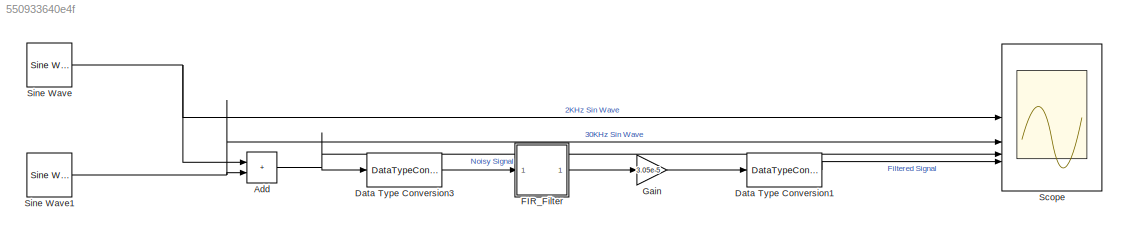
MODEL slx_550933640e4f
KIND model
CONFIG AbsTol = auto
CONFIG EnableMultiTasking = off
CONFIG FixedStep = auto
CONFIG MaxStep = auto
CONFIG MinStep = auto
CONFIG PreLoadFcn = addpath('D:\Digital IC\FPGA\fir_filter\verif\hdlimport\FIR_Filter');\n
CONFIG RelTol = 1e-3
CONFIG SampleTimeConstraint = Unconstrained
CONFIG SolverName = FixedStepDiscrete
CONFIG StartTime = 0.0
CONFIG StopTime = 0.01
BLOCK [Sum] Add
  IconShape = rectangular
  OutDataTypeStr = double
BLOCK [DataTypeConversion] Data Type Conversion1
  OutDataTypeStr = double
  RndMeth = Round
  SaturateOnIntegerOverflow = off
BLOCK [DataTypeConversion] Data Type Conversion3
  OutDataTypeStr = int16
  RndMeth = Round
  SaturateOnIntegerOverflow = off
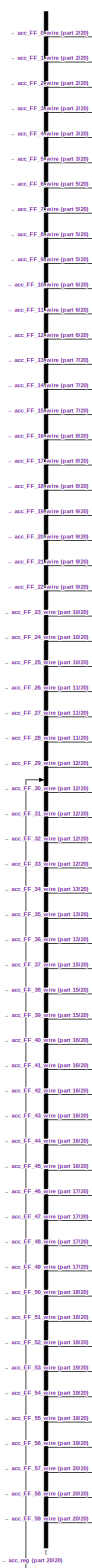
[diagram: FIR_Filter - part 1/20, top left region]
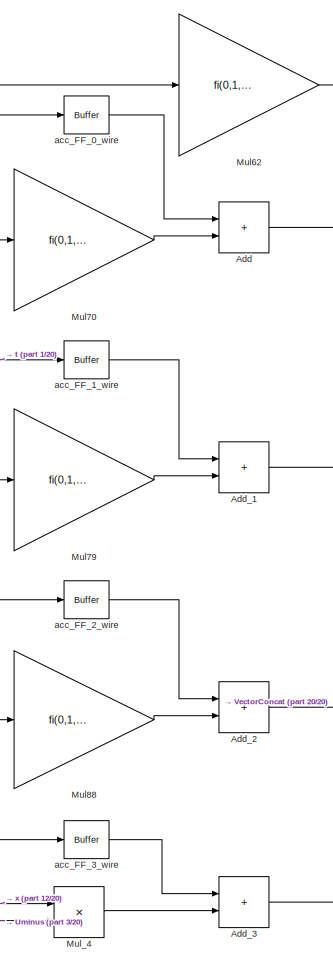
[diagram: FIR_Filter - part 2/20, top center region]
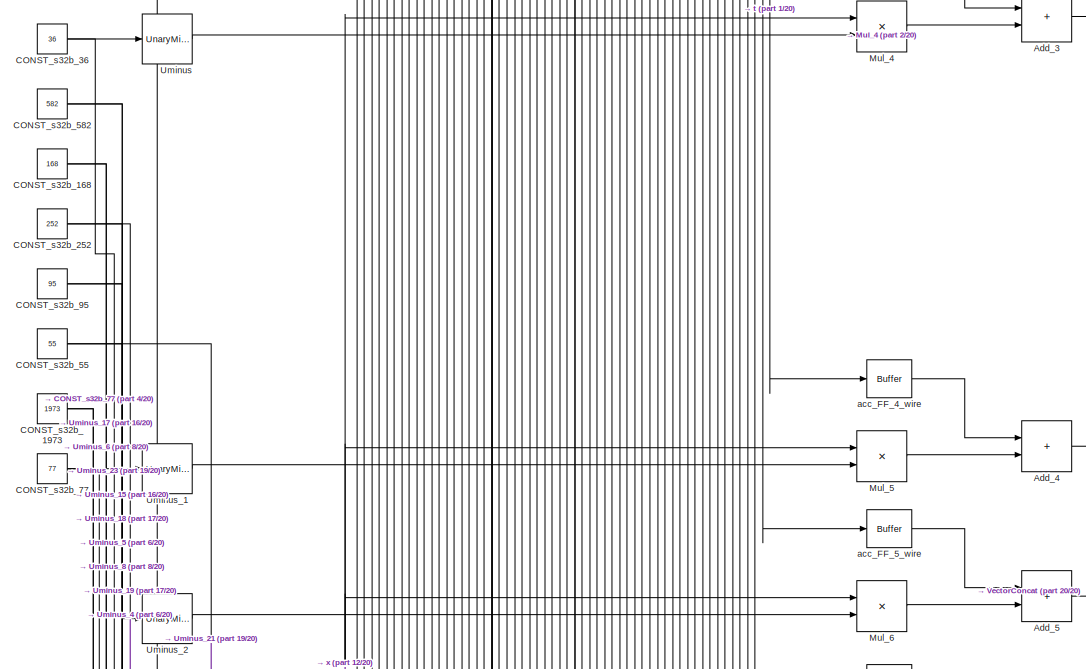
[diagram: FIR_Filter - part 3/20, top left region]
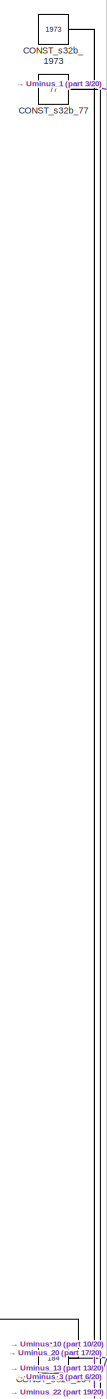
[diagram: FIR_Filter - part 4/20, top left region]
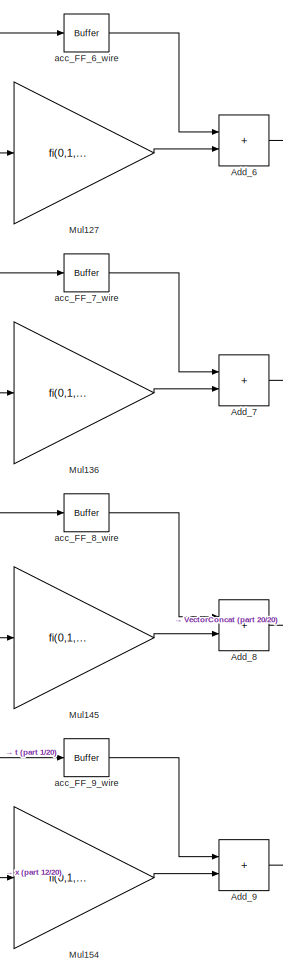
[diagram: FIR_Filter - part 5/20, top center region]
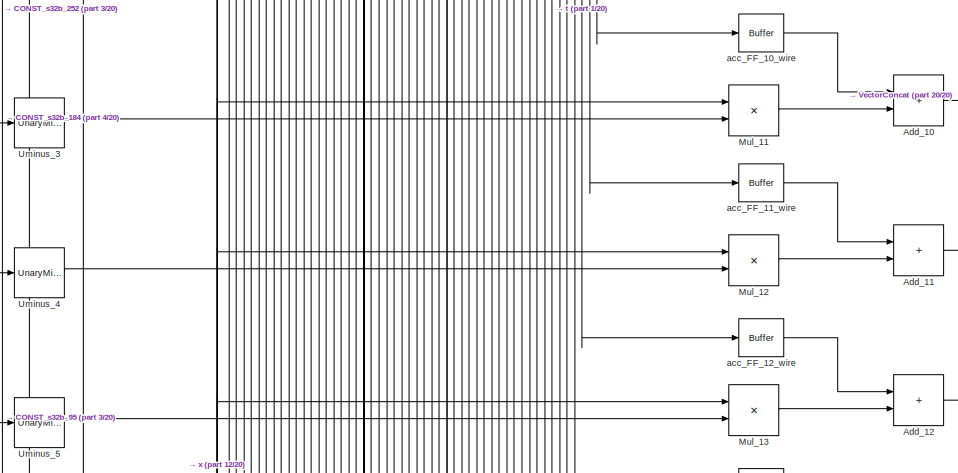
[diagram: FIR_Filter - part 6/20, top left region]
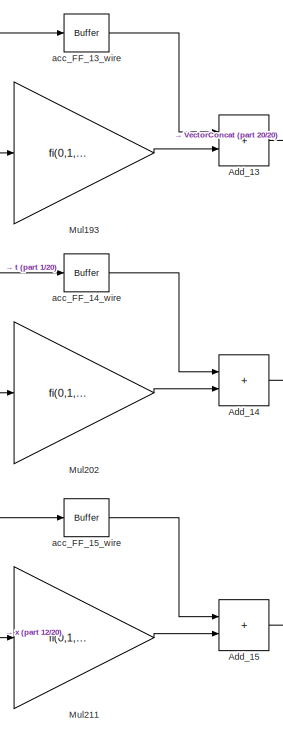
[diagram: FIR_Filter - part 7/20, top center region]
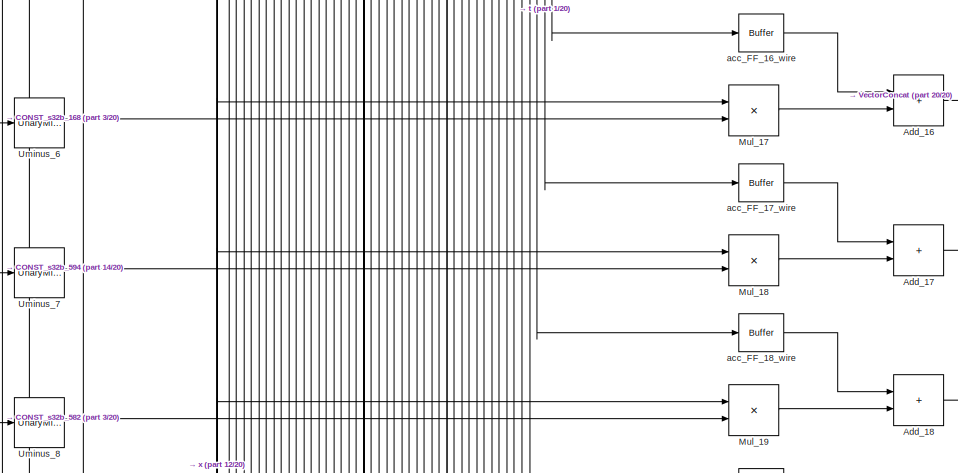
[diagram: FIR_Filter - part 8/20, middle left region]
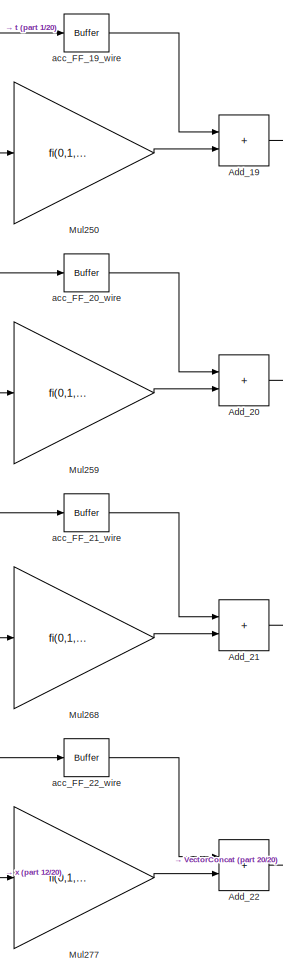
[diagram: FIR_Filter - part 9/20, central region]
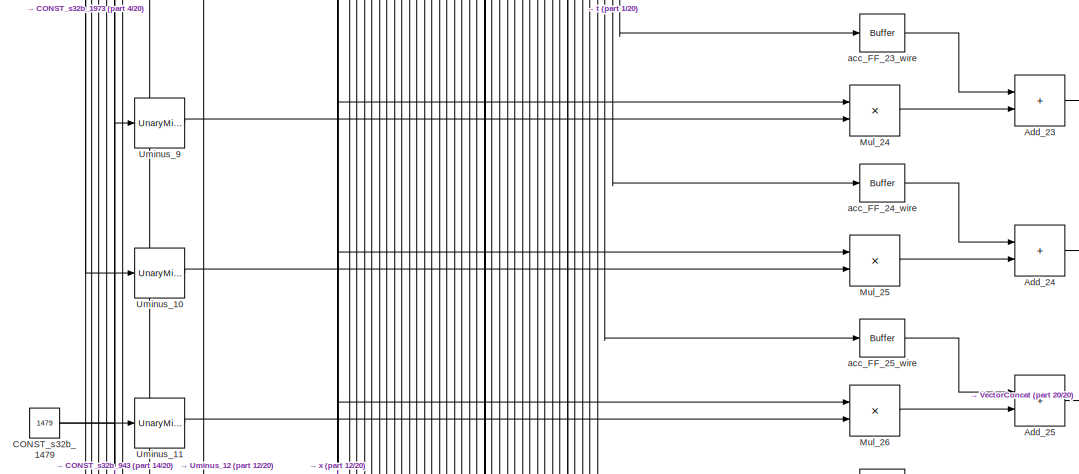
[diagram: FIR_Filter - part 10/20, middle left region]
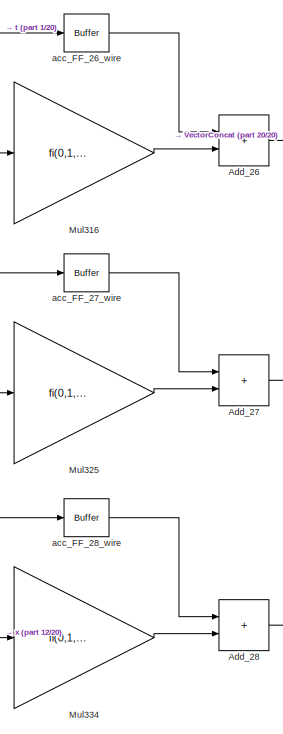
[diagram: FIR_Filter - part 11/20, central region]
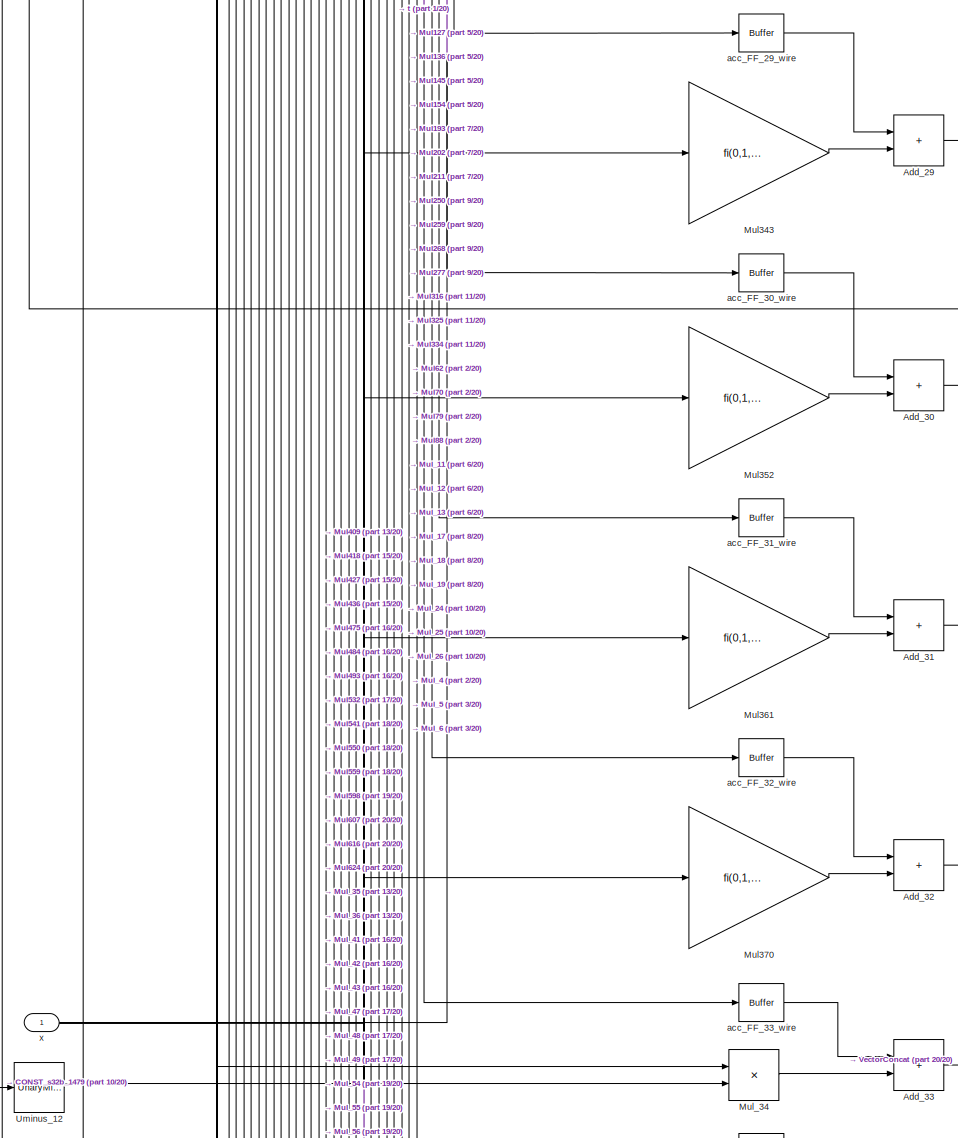
[diagram: FIR_Filter - part 12/20, middle left region]
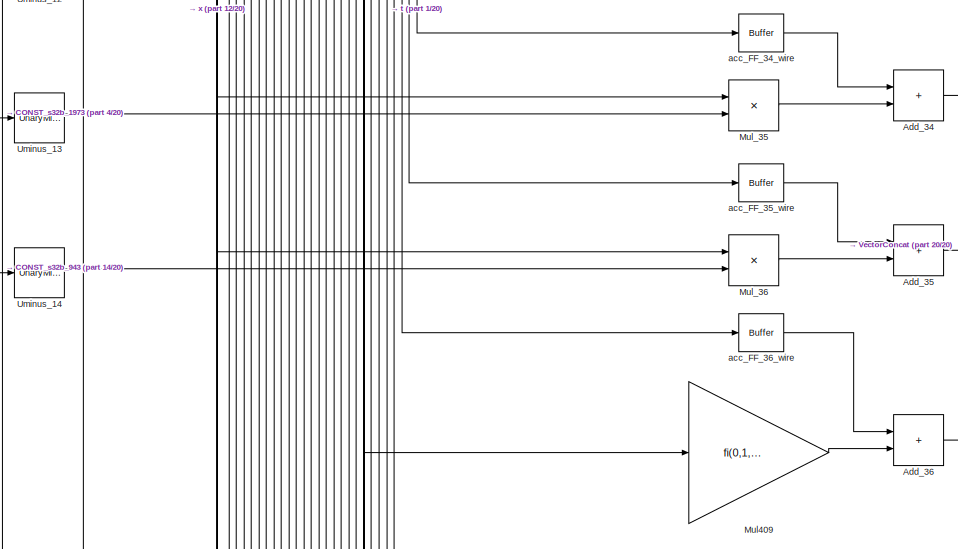
[diagram: FIR_Filter - part 13/20, middle left region]
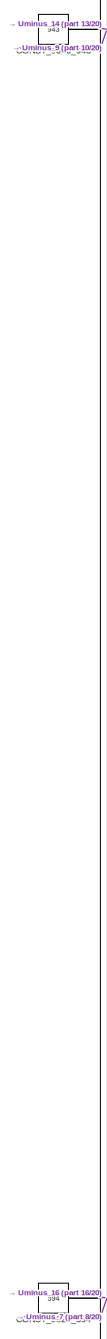
[diagram: FIR_Filter - part 14/20, bottom left region]
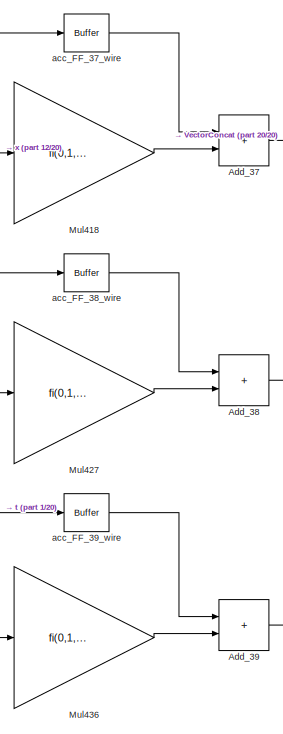
[diagram: FIR_Filter - part 15/20, bottom center region]
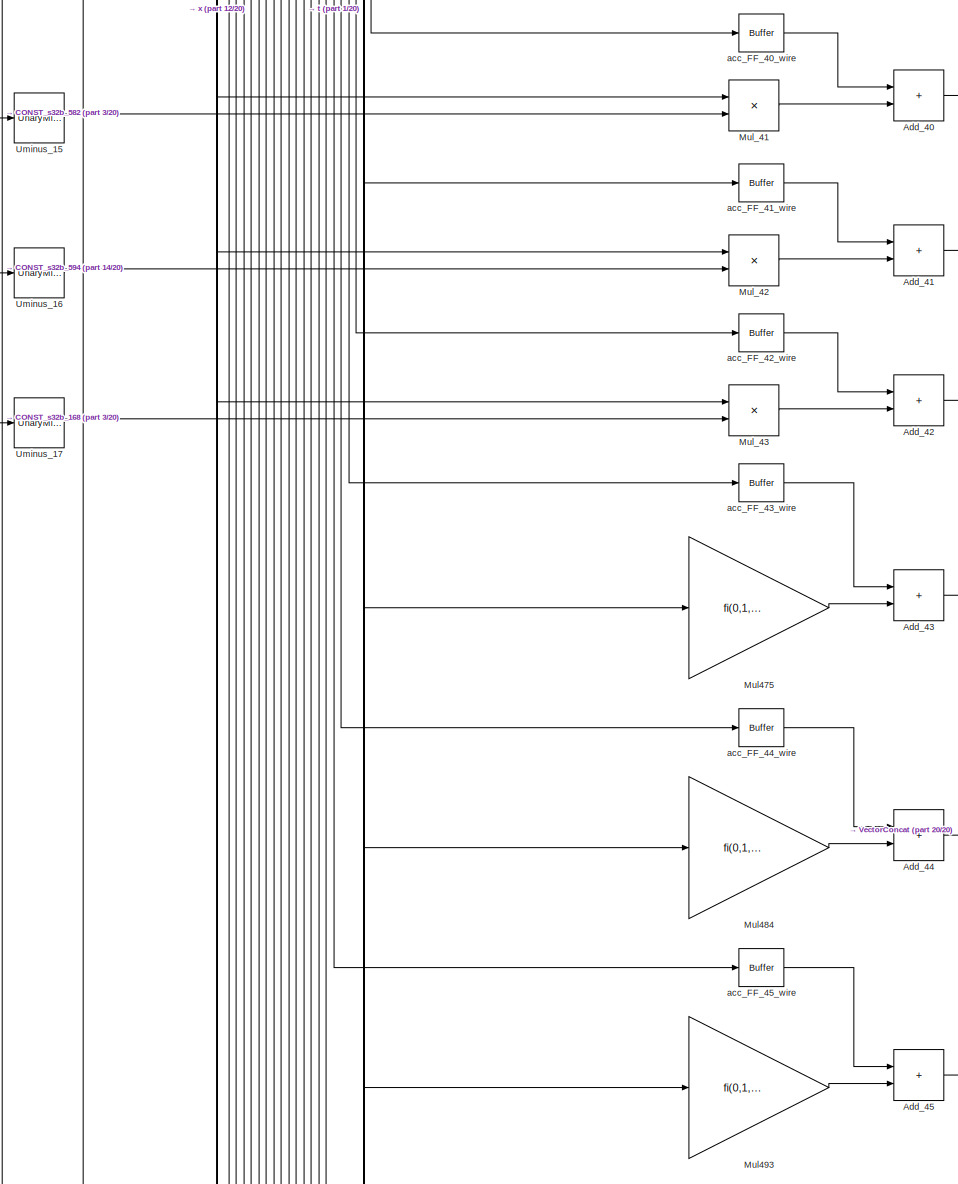
[diagram: FIR_Filter - part 16/20, bottom left region]
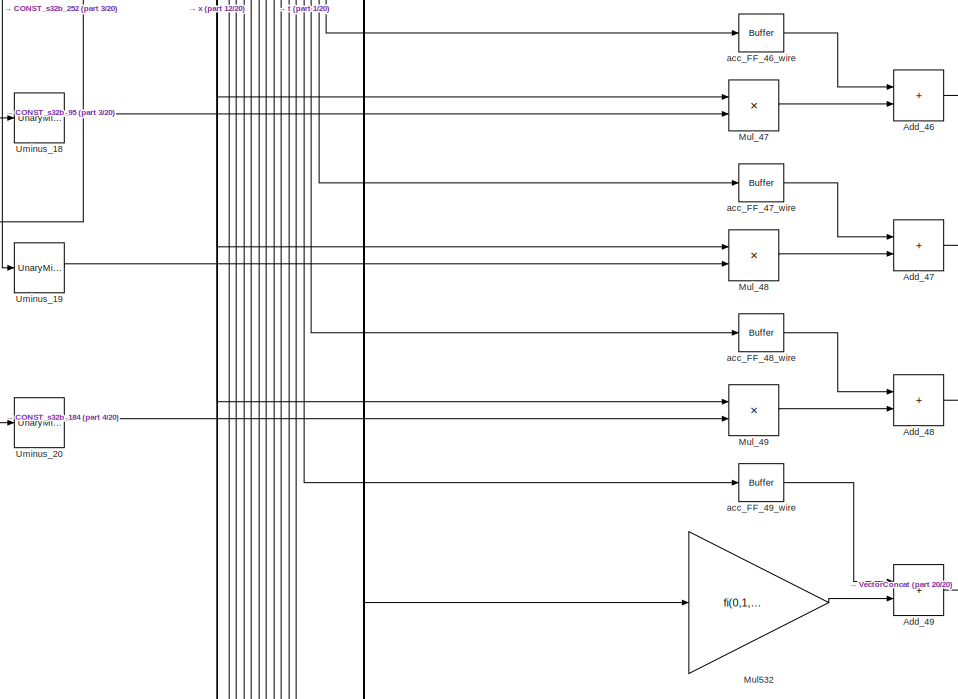
[diagram: FIR_Filter - part 17/20, bottom left region]
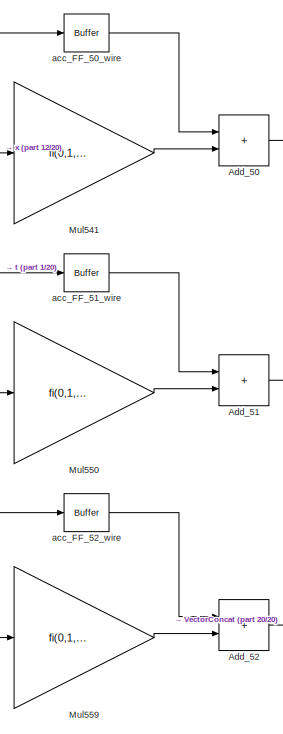
[diagram: FIR_Filter - part 18/20, bottom center region]
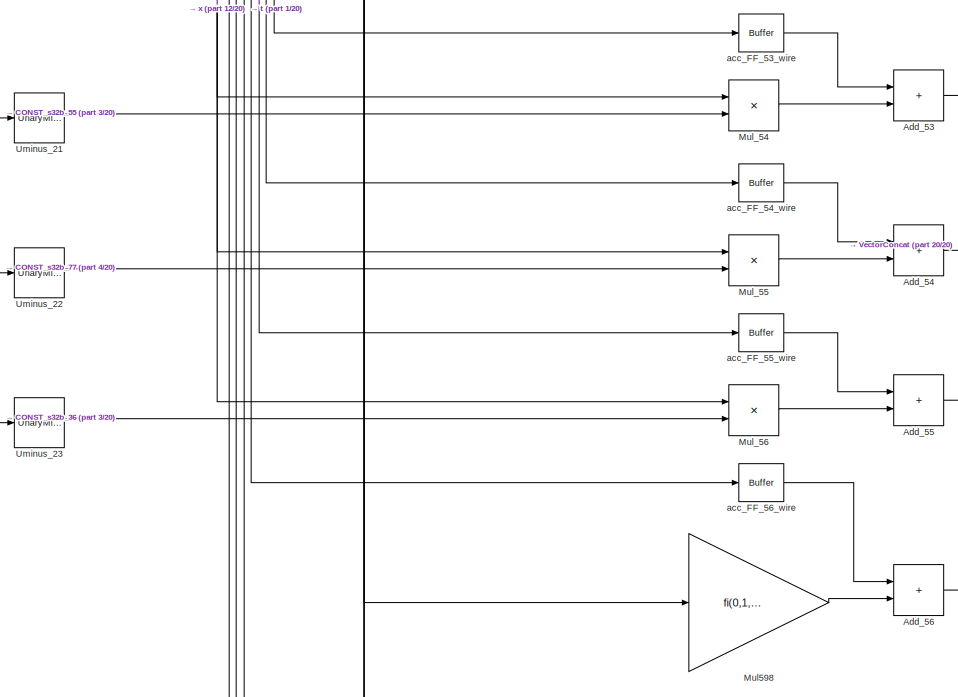
[diagram: FIR_Filter - part 19/20, bottom left region]
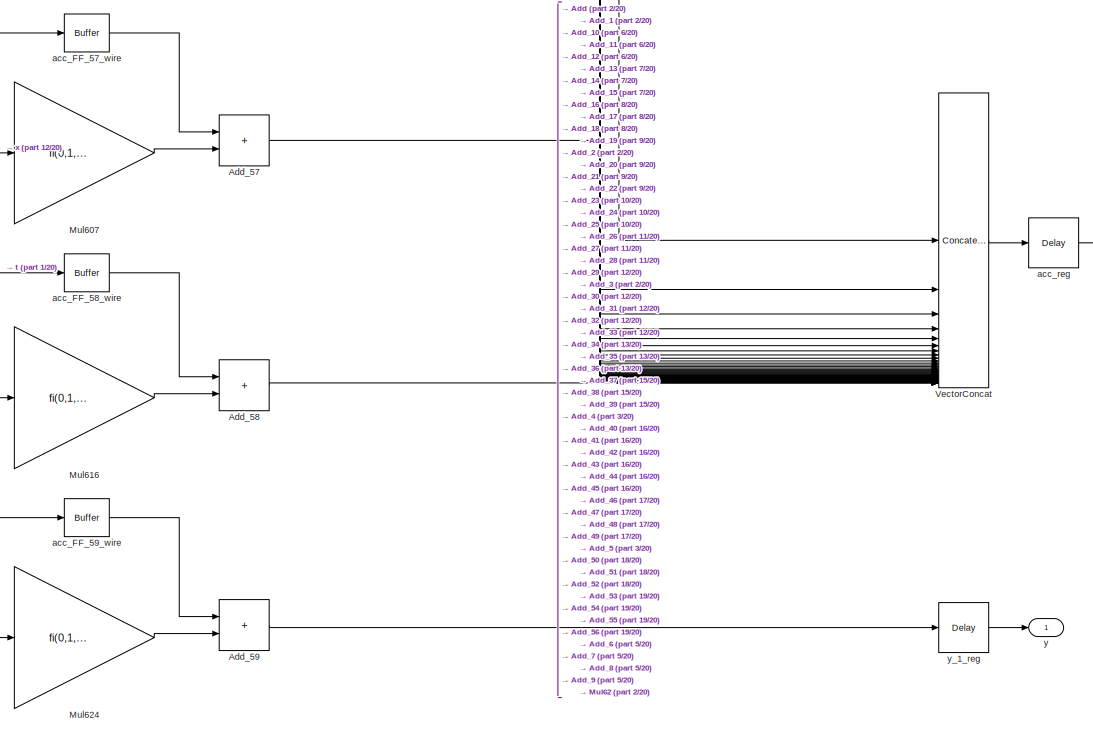
[diagram: FIR_Filter - part 20/20, bottom right region]
BLOCK [SubSystem] FIR_Filter
BLOCK [Sum] FIR_Filter/Add
  AccumDataTypeStr = int32
  IconShape = rectangular
  OutDataTypeStr = int32
  SampleTime = -1
BLOCK [Sum] FIR_Filter/Add_1
  AccumDataTypeStr = int32
  IconShape = rectangular
  OutDataTypeStr = int32
  SampleTime = -1
BLOCK [Sum] FIR_Filter/Add_10
  AccumDataTypeStr = int32
  IconShape = rectangular
  OutDataTypeStr = int32
  SampleTime = -1
BLOCK [Sum] FIR_Filter/Add_11
  AccumDataTypeStr = int32
  IconShape = rectangular
  OutDataTypeStr = int32
  SampleTime = -1
BLOCK [Sum] FIR_Filter/Add_12
  AccumDataTypeStr = int32
  IconShape = rectangular
  OutDataTypeStr = int32
  SampleTime = -1
BLOCK [Sum] FIR_Filter/Add_13
  AccumDataTypeStr = int32
  IconShape = rectangular
  OutDataTypeStr = int32
  SampleTime = -1
BLOCK [Sum] FIR_Filter/Add_14
  AccumDataTypeStr = int32
  IconShape = rectangular
  OutDataTypeStr = int32
  SampleTime = -1
BLOCK [Sum] FIR_Filter/Add_15
  AccumDataTypeStr = int32
  IconShape = rectangular
  OutDataTypeStr = int32
  SampleTime = -1
BLOCK [Sum] FIR_Filter/Add_16
  AccumDataTypeStr = int32
  IconShape = rectangular
  OutDataTypeStr = int32
  SampleTime = -1
BLOCK [Sum] FIR_Filter/Add_17
  AccumDataTypeStr = int32
  IconShape = rectangular
  OutDataTypeStr = int32
  SampleTime = -1
BLOCK [Sum] FIR_Filter/Add_18
  AccumDataTypeStr = int32
  IconShape = rectangular
  OutDataTypeStr = int32
  SampleTime = -1
BLOCK [Sum] FIR_Filter/Add_19
  AccumDataTypeStr = int32
  IconShape = rectangular
  OutDataTypeStr = int32
  SampleTime = -1
BLOCK [Sum] FIR_Filter/Add_2
  AccumDataTypeStr = int32
  IconShape = rectangular
  OutDataTypeStr = int32
  SampleTime = -1
BLOCK [Sum] FIR_Filter/Add_20
  AccumDataTypeStr = int32
  IconShape = rectangular
  OutDataTypeStr = int32
  SampleTime = -1
BLOCK [Sum] FIR_Filter/Add_21
  AccumDataTypeStr = int32
  IconShape = rectangular
  OutDataTypeStr = int32
  SampleTime = -1
BLOCK [Sum] FIR_Filter/Add_22
  AccumDataTypeStr = int32
  IconShape = rectangular
  OutDataTypeStr = int32
  SampleTime = -1
BLOCK [Sum] FIR_Filter/Add_23
  AccumDataTypeStr = int32
  IconShape = rectangular
  OutDataTypeStr = int32
  SampleTime = -1
BLOCK [Sum] FIR_Filter/Add_24
  AccumDataTypeStr = int32
  IconShape = rectangular
  OutDataTypeStr = int32
  SampleTime = -1
BLOCK [Sum] FIR_Filter/Add_25
  AccumDataTypeStr = int32
  IconShape = rectangular
  OutDataTypeStr = int32
  SampleTime = -1
BLOCK [Sum] FIR_Filter/Add_26
  AccumDataTypeStr = int32
  IconShape = rectangular
  OutDataTypeStr = int32
  SampleTime = -1
BLOCK [Sum] FIR_Filter/Add_27
  AccumDataTypeStr = int32
  IconShape = rectangular
  OutDataTypeStr = int32
  SampleTime = -1
BLOCK [Sum] FIR_Filter/Add_28
  AccumDataTypeStr = int32
  IconShape = rectangular
  OutDataTypeStr = int32
  SampleTime = -1
BLOCK [Sum] FIR_Filter/Add_29
  AccumDataTypeStr = int32
  IconShape = rectangular
  OutDataTypeStr = int32
  SampleTime = -1
BLOCK [Sum] FIR_Filter/Add_3
  AccumDataTypeStr = int32
  IconShape = rectangular
  OutDataTypeStr = int32
  SampleTime = -1
BLOCK [Sum] FIR_Filter/Add_30
  AccumDataTypeStr = int32
  IconShape = rectangular
  OutDataTypeStr = int32
  SampleTime = -1
BLOCK [Sum] FIR_Filter/Add_31
  AccumDataTypeStr = int32
  IconShape = rectangular
  OutDataTypeStr = int32
  SampleTime = -1
BLOCK [Sum] FIR_Filter/Add_32
  AccumDataTypeStr = int32
  IconShape = rectangular
  OutDataTypeStr = int32
  SampleTime = -1
BLOCK [Sum] FIR_Filter/Add_33
  AccumDataTypeStr = int32
  IconShape = rectangular
  OutDataTypeStr = int32
  SampleTime = -1
BLOCK [Sum] FIR_Filter/Add_34
  AccumDataTypeStr = int32
  IconShape = rectangular
  OutDataTypeStr = int32
  SampleTime = -1
BLOCK [Sum] FIR_Filter/Add_35
  AccumDataTypeStr = int32
  IconShape = rectangular
  OutDataTypeStr = int32
  SampleTime = -1
BLOCK [Sum] FIR_Filter/Add_36
  AccumDataTypeStr = int32
  IconShape = rectangular
  OutDataTypeStr = int32
  SampleTime = -1
BLOCK [Sum] FIR_Filter/Add_37
  AccumDataTypeStr = int32
  IconShape = rectangular
  OutDataTypeStr = int32
  SampleTime = -1
BLOCK [Sum] FIR_Filter/Add_38
  AccumDataTypeStr = int32
  IconShape = rectangular
  OutDataTypeStr = int32
  SampleTime = -1
BLOCK [Sum] FIR_Filter/Add_39
  AccumDataTypeStr = int32
  IconShape = rectangular
  OutDataTypeStr = int32
  SampleTime = -1
BLOCK [Sum] FIR_Filter/Add_4
  AccumDataTypeStr = int32
  IconShape = rectangular
  OutDataTypeStr = int32
  SampleTime = -1
BLOCK [Sum] FIR_Filter/Add_40
  AccumDataTypeStr = int32
  IconShape = rectangular
  OutDataTypeStr = int32
  SampleTime = -1
BLOCK [Sum] FIR_Filter/Add_41
  AccumDataTypeStr = int32
  IconShape = rectangular
  OutDataTypeStr = int32
  SampleTime = -1
BLOCK [Sum] FIR_Filter/Add_42
  AccumDataTypeStr = int32
  IconShape = rectangular
  OutDataTypeStr = int32
  SampleTime = -1
BLOCK [Sum] FIR_Filter/Add_43
  AccumDataTypeStr = int32
  IconShape = rectangular
  OutDataTypeStr = int32
  SampleTime = -1
BLOCK [Sum] FIR_Filter/Add_44
  AccumDataTypeStr = int32
  IconShape = rectangular
  OutDataTypeStr = int32
  SampleTime = -1
BLOCK [Sum] FIR_Filter/Add_45
  AccumDataTypeStr = int32
  IconShape = rectangular
  OutDataTypeStr = int32
  SampleTime = -1
BLOCK [Sum] FIR_Filter/Add_46
  AccumDataTypeStr = int32
  IconShape = rectangular
  OutDataTypeStr = int32
  SampleTime = -1
BLOCK [Sum] FIR_Filter/Add_47
  AccumDataTypeStr = int32
  IconShape = rectangular
  OutDataTypeStr = int32
  SampleTime = -1
BLOCK [Sum] FIR_Filter/Add_48
  AccumDataTypeStr = int32
  IconShape = rectangular
  OutDataTypeStr = int32
  SampleTime = -1
BLOCK [Sum] FIR_Filter/Add_49
  AccumDataTypeStr = int32
  IconShape = rectangular
  OutDataTypeStr = int32
  SampleTime = -1
BLOCK [Sum] FIR_Filter/Add_5
  AccumDataTypeStr = int32
  IconShape = rectangular
  OutDataTypeStr = int32
  SampleTime = -1
BLOCK [Sum] FIR_Filter/Add_50
  AccumDataTypeStr = int32
  IconShape = rectangular
  OutDataTypeStr = int32
  SampleTime = -1
BLOCK [Sum] FIR_Filter/Add_51
  AccumDataTypeStr = int32
  IconShape = rectangular
  OutDataTypeStr = int32
  SampleTime = -1
BLOCK [Sum] FIR_Filter/Add_52
  AccumDataTypeStr = int32
  IconShape = rectangular
  OutDataTypeStr = int32
  SampleTime = -1
BLOCK [Sum] FIR_Filter/Add_53
  AccumDataTypeStr = int32
  IconShape = rectangular
  OutDataTypeStr = int32
  SampleTime = -1
BLOCK [Sum] FIR_Filter/Add_54
  AccumDataTypeStr = int32
  IconShape = rectangular
  OutDataTypeStr = int32
  SampleTime = -1
BLOCK [Sum] FIR_Filter/Add_55
  AccumDataTypeStr = int32
  IconShape = rectangular
  OutDataTypeStr = int32
  SampleTime = -1
BLOCK [Sum] FIR_Filter/Add_56
  AccumDataTypeStr = int32
  IconShape = rectangular
  OutDataTypeStr = int32
  SampleTime = -1
BLOCK [Sum] FIR_Filter/Add_57
  AccumDataTypeStr = int32
  IconShape = rectangular
  OutDataTypeStr = int32
  SampleTime = -1
BLOCK [Sum] FIR_Filter/Add_58
  AccumDataTypeStr = int32
  IconShape = rectangular
  OutDataTypeStr = int32
  SampleTime = -1
BLOCK [Sum] FIR_Filter/Add_59
  AccumDataTypeStr = int32
  IconShape = rectangular
  OutDataTypeStr = int32
  SampleTime = -1
BLOCK [Sum] FIR_Filter/Add_6
  AccumDataTypeStr = int32
  IconShape = rectangular
  OutDataTypeStr = int32
  SampleTime = -1
BLOCK [Sum] FIR_Filter/Add_7
  AccumDataTypeStr = int32
  IconShape = rectangular
  OutDataTypeStr = int32
  SampleTime = -1
BLOCK [Sum] FIR_Filter/Add_8
  AccumDataTypeStr = int32
  IconShape = rectangular
  OutDataTypeStr = int32
  SampleTime = -1
BLOCK [Sum] FIR_Filter/Add_9
  AccumDataTypeStr = int32
  IconShape = rectangular
  OutDataTypeStr = int32
  SampleTime = -1
BLOCK [Constant] FIR_Filter/CONST_s32b_1479
  OutDataTypeStr = int32
  SampleTime = -1
  Value = 1479
BLOCK [Constant] FIR_Filter/CONST_s32b_168
  OutDataTypeStr = int32
  SampleTime = -1
  Value = 168
BLOCK [Constant] FIR_Filter/CONST_s32b_184
  OutDataTypeStr = int32
  SampleTime = -1
  Value = 184
BLOCK [Constant] FIR_Filter/CONST_s32b_1973
  OutDataTypeStr = int32
  SampleTime = -1
  Value = 1973
BLOCK [Constant] FIR_Filter/CONST_s32b_252
  OutDataTypeStr = int32
  SampleTime = -1
  Value = 252
BLOCK [Constant] FIR_Filter/CONST_s32b_36
  OutDataTypeStr = int32
  SampleTime = -1
  Value = 36
BLOCK [Constant] FIR_Filter/CONST_s32b_55
  OutDataTypeStr = int32
  SampleTime = -1
  Value = 55
BLOCK [Constant] FIR_Filter/CONST_s32b_582
  OutDataTypeStr = int32
  SampleTime = -1
  Value = 582
BLOCK [Constant] FIR_Filter/CONST_s32b_594
  OutDataTypeStr = int32
  SampleTime = -1
  Value = 594
BLOCK [Constant] FIR_Filter/CONST_s32b_77
  OutDataTypeStr = int32
  SampleTime = -1
  Value = 77
BLOCK [Constant] FIR_Filter/CONST_s32b_943
  OutDataTypeStr = int32
  SampleTime = -1
  Value = 943
BLOCK [Constant] FIR_Filter/CONST_s32b_95
  OutDataTypeStr = int32
  SampleTime = -1
  Value = 95
BLOCK [Gain] FIR_Filter/Mul127
  Gain = fi(0,1,32,0,"hex","00000023")
  OutDataTypeStr = int32
  ParamDataTypeStr = fixdt(1, 32, 0)
  SampleTime = -1
BLOCK [Gain] FIR_Filter/Mul136
  Gain = fi(0,1,32,0,"hex","00000083")
  OutDataTypeStr = int32
  ParamDataTypeStr = fixdt(1, 32, 0)
  SampleTime = -1
BLOCK [Gain] FIR_Filter/Mul145
  Gain = fi(0,1,32,0,"hex","00000085")
  OutDataTypeStr = int32
  ParamDataTypeStr = fixdt(1, 32, 0)
  SampleTime = -1
BLOCK [Gain] FIR_Filter/Mul154
  Gain = fi(0,1,32,0,"hex","00000000")
  OutDataTypeStr = int32
  ParamDataTypeStr = fixdt(1, 32, 0)
  SampleTime = -1
BLOCK [Gain] FIR_Filter/Mul193
  Gain = fi(0,1,32,0,"hex","000000d1")
  OutDataTypeStr = int32
  ParamDataTypeStr = fixdt(1, 32, 0)
  SampleTime = -1
BLOCK [Gain] FIR_Filter/Mul202
  Gain = fi(0,1,32,0,"hex","0000019a")
  OutDataTypeStr = int32
  ParamDataTypeStr = fixdt(1, 32, 0)
  SampleTime = -1
BLOCK [Gain] FIR_Filter/Mul211
  Gain = fi(0,1,32,0,"hex","00000115")
  OutDataTypeStr = int32
  ParamDataTypeStr = fixdt(1, 32, 0)
  SampleTime = -1
BLOCK [Gain] FIR_Filter/Mul250
  Gain = fi(0,1,32,0,"hex","00000000")
  OutDataTypeStr = int32
  ParamDataTypeStr = fixdt(1, 32, 0)
  SampleTime = -1
BLOCK [Gain] FIR_Filter/Mul259
  Gain = fi(0,1,32,0,"hex","0000030d")
  OutDataTypeStr = int32
  ParamDataTypeStr = fixdt(1, 32, 0)
  SampleTime = -1
BLOCK [Gain] FIR_Filter/Mul268
  Gain = fi(0,1,32,0,"hex","00000432")
  OutDataTypeStr = int32
  ParamDataTypeStr = fixdt(1, 32, 0)
  SampleTime = -1
BLOCK [Gain] FIR_Filter/Mul277
  Gain = fi(0,1,32,0,"hex","0000019d")
  OutDataTypeStr = int32
  ParamDataTypeStr = fixdt(1, 32, 0)
  SampleTime = -1
BLOCK [Gain] FIR_Filter/Mul316
  Gain = fi(0,1,32,0,"hex","0000041d")
  OutDataTypeStr = int32
  ParamDataTypeStr = fixdt(1, 32, 0)
  SampleTime = -1
BLOCK [Gain] FIR_Filter/Mul325
  Gain = fi(0,1,32,0,"hex","00001334")
  OutDataTypeStr = int32
  ParamDataTypeStr = fixdt(1, 32, 0)
  SampleTime = -1
BLOCK [Gain] FIR_Filter/Mul334
  Gain = fi(0,1,32,0,"hex","000020e4")
  OutDataTypeStr = int32
  ParamDataTypeStr = fixdt(1, 32, 0)
  SampleTime = -1
BLOCK [Gain] FIR_Filter/Mul343
  Gain = fi(0,1,32,0,"hex","00002666")
  OutDataTypeStr = int32
  ParamDataTypeStr = fixdt(1, 32, 0)
  SampleTime = -1
BLOCK [Gain] FIR_Filter/Mul352
  Gain = fi(0,1,32,0,"hex","000020e4")
  OutDataTypeStr = int32
  ParamDataTypeStr = fixdt(1, 32, 0)
  SampleTime = -1
BLOCK [Gain] FIR_Filter/Mul361
  Gain = fi(0,1,32,0,"hex","00001334")
  OutDataTypeStr = int32
  ParamDataTypeStr = fixdt(1, 32, 0)
  SampleTime = -1
BLOCK [Gain] FIR_Filter/Mul370
  Gain = fi(0,1,32,0,"hex","0000041d")
  OutDataTypeStr = int32
  ParamDataTypeStr = fixdt(1, 32, 0)
  SampleTime = -1
BLOCK [Gain] FIR_Filter/Mul409
  Gain = fi(0,1,32,0,"hex","0000019d")
  OutDataTypeStr = int32
  ParamDataTypeStr = fixdt(1, 32, 0)
  SampleTime = -1
BLOCK [Gain] FIR_Filter/Mul418
  Gain = fi(0,1,32,0,"hex","00000432")
  OutDataTypeStr = int32
  ParamDataTypeStr = fixdt(1, 32, 0)
  SampleTime = -1
BLOCK [Gain] FIR_Filter/Mul427
  Gain = fi(0,1,32,0,"hex","0000030d")
  OutDataTypeStr = int32
  ParamDataTypeStr = fixdt(1, 32, 0)
  SampleTime = -1
BLOCK [Gain] FIR_Filter/Mul436
  Gain = fi(0,1,32,0,"hex","00000000")
  OutDataTypeStr = int32
  ParamDataTypeStr = fixdt(1, 32, 0)
  SampleTime = -1
BLOCK [Gain] FIR_Filter/Mul475
  Gain = fi(0,1,32,0,"hex","00000115")
  OutDataTypeStr = int32
  ParamDataTypeStr = fixdt(1, 32, 0)
  SampleTime = -1
BLOCK [Gain] FIR_Filter/Mul484
  Gain = fi(0,1,32,0,"hex","0000019a")
  OutDataTypeStr = int32
  ParamDataTypeStr = fixdt(1, 32, 0)
  SampleTime = -1
BLOCK [Gain] FIR_Filter/Mul493
  Gain = fi(0,1,32,0,"hex","000000d1")
  OutDataTypeStr = int32
  ParamDataTypeStr = fixdt(1, 32, 0)
  SampleTime = -1
BLOCK [Gain] FIR_Filter/Mul532
  Gain = fi(0,1,32,0,"hex","00000000")
  OutDataTypeStr = int32
  ParamDataTypeStr = fixdt(1, 32, 0)
  SampleTime = -1
BLOCK [Gain] FIR_Filter/Mul541
  Gain = fi(0,1,32,0,"hex","00000085")
  OutDataTypeStr = int32
  ParamDataTypeStr = fixdt(1, 32, 0)
  SampleTime = -1
BLOCK [Gain] FIR_Filter/Mul550
  Gain = fi(0,1,32,0,"hex","00000083")
  OutDataTypeStr = int32
  ParamDataTypeStr = fixdt(1, 32, 0)
  SampleTime = -1
BLOCK [Gain] FIR_Filter/Mul559
  Gain = fi(0,1,32,0,"hex","00000023")
  OutDataTypeStr = int32
  ParamDataTypeStr = fixdt(1, 32, 0)
  SampleTime = -1
BLOCK [Gain] FIR_Filter/Mul598
  Gain = fi(0,1,32,0,"hex","0000000f")
  OutDataTypeStr = int32
  ParamDataTypeStr = fixdt(1, 32, 0)
  SampleTime = -1
BLOCK [Gain] FIR_Filter/Mul607
  Gain = fi(0,1,32,0,"hex","00000023")
  OutDataTypeStr = int32
  ParamDataTypeStr = fixdt(1, 32, 0)
  SampleTime = -1
BLOCK [Gain] FIR_Filter/Mul616
  Gain = fi(0,1,32,0,"hex","00000016")
  OutDataTypeStr = int32
  ParamDataTypeStr = fixdt(1, 32, 0)
  SampleTime = -1
BLOCK [Gain] FIR_Filter/Mul62
  Gain = fi(0,1,32,0,"hex","00000000")
  OutDataTypeStr = int32
  ParamDataTypeStr = fixdt(1, 32, 0)
  SampleTime = -1
BLOCK [Gain] FIR_Filter/Mul624
  Gain = fi(0,1,32,0,"hex","00000000")
  OutDataTypeStr = int32
  ParamDataTypeStr = fixdt(1, 32, 0)
  SampleTime = -1
BLOCK [Gain] FIR_Filter/Mul70
  Gain = fi(0,1,32,0,"hex","00000016")
  OutDataTypeStr = int32
  ParamDataTypeStr = fixdt(1, 32, 0)
  SampleTime = -1
BLOCK [Gain] FIR_Filter/Mul79
  Gain = fi(0,1,32,0,"hex","00000023")
  OutDataTypeStr = int32
  ParamDataTypeStr = fixdt(1, 32, 0)
  SampleTime = -1
BLOCK [Gain] FIR_Filter/Mul88
  Gain = fi(0,1,32,0,"hex","0000000f")
  OutDataTypeStr = int32
  ParamDataTypeStr = fixdt(1, 32, 0)
  SampleTime = -1
BLOCK [Product] FIR_Filter/Mul_11
  Inputs = **
  OutDataTypeStr = int32
  SampleTime = -1
BLOCK [Product] FIR_Filter/Mul_12
  Inputs = **
  OutDataTypeStr = int32
  SampleTime = -1
BLOCK [Product] FIR_Filter/Mul_13
  Inputs = **
  OutDataTypeStr = int32
  SampleTime = -1
BLOCK [Product] FIR_Filter/Mul_17
  Inputs = **
  OutDataTypeStr = int32
  SampleTime = -1
BLOCK [Product] FIR_Filter/Mul_18
  Inputs = **
  OutDataTypeStr = int32
  SampleTime = -1
BLOCK [Product] FIR_Filter/Mul_19
  Inputs = **
  OutDataTypeStr = int32
  SampleTime = -1
BLOCK [Product] FIR_Filter/Mul_24
  Inputs = **
  OutDataTypeStr = int32
  SampleTime = -1
BLOCK [Product] FIR_Filter/Mul_25
  Inputs = **
  OutDataTypeStr = int32
  SampleTime = -1
BLOCK [Product] FIR_Filter/Mul_26
  Inputs = **
  OutDataTypeStr = int32
  SampleTime = -1
BLOCK [Product] FIR_Filter/Mul_34
  Inputs = **
  OutDataTypeStr = int32
  SampleTime = -1
BLOCK [Product] FIR_Filter/Mul_35
  Inputs = **
  OutDataTypeStr = int32
  SampleTime = -1
BLOCK [Product] FIR_Filter/Mul_36
  Inputs = **
  OutDataTypeStr = int32
  SampleTime = -1
BLOCK [Product] FIR_Filter/Mul_4
  Inputs = **
  OutDataTypeStr = int32
  SampleTime = -1
BLOCK [Product] FIR_Filter/Mul_41
  Inputs = **
  OutDataTypeStr = int32
  SampleTime = -1
BLOCK [Product] FIR_Filter/Mul_42
  Inputs = **
  OutDataTypeStr = int32
  SampleTime = -1
BLOCK [Product] FIR_Filter/Mul_43
  Inputs = **
  OutDataTypeStr = int32
  SampleTime = -1
BLOCK [Product] FIR_Filter/Mul_47
  Inputs = **
  OutDataTypeStr = int32
  SampleTime = -1
BLOCK [Product] FIR_Filter/Mul_48
  Inputs = **
  OutDataTypeStr = int32
  SampleTime = -1
BLOCK [Product] FIR_Filter/Mul_49
  Inputs = **
  OutDataTypeStr = int32
  SampleTime = -1
BLOCK [Product] FIR_Filter/Mul_5
  Inputs = **
  OutDataTypeStr = int32
  SampleTime = -1
BLOCK [Product] FIR_Filter/Mul_54
  Inputs = **
  OutDataTypeStr = int32
  SampleTime = -1
BLOCK [Product] FIR_Filter/Mul_55
  Inputs = **
  OutDataTypeStr = int32
  SampleTime = -1
BLOCK [Product] FIR_Filter/Mul_56
  Inputs = **
  OutDataTypeStr = int32
  SampleTime = -1
BLOCK [Product] FIR_Filter/Mul_6
  Inputs = **
  OutDataTypeStr = int32
  SampleTime = -1
BLOCK [UnaryMinus] FIR_Filter/Uminus
  SampleTime = -1
BLOCK [UnaryMinus] FIR_Filter/Uminus_1
  SampleTime = -1
BLOCK [UnaryMinus] FIR_Filter/Uminus_10
  SampleTime = -1
BLOCK [UnaryMinus] FIR_Filter/Uminus_11
  SampleTime = -1
BLOCK [UnaryMinus] FIR_Filter/Uminus_12
  SampleTime = -1
BLOCK [UnaryMinus] FIR_Filter/Uminus_13
  SampleTime = -1
BLOCK [UnaryMinus] FIR_Filter/Uminus_14
  SampleTime = -1
BLOCK [UnaryMinus] FIR_Filter/Uminus_15
  SampleTime = -1
BLOCK [UnaryMinus] FIR_Filter/Uminus_16
  SampleTime = -1
BLOCK [UnaryMinus] FIR_Filter/Uminus_17
  SampleTime = -1
BLOCK [UnaryMinus] FIR_Filter/Uminus_18
  SampleTime = -1
BLOCK [UnaryMinus] FIR_Filter/Uminus_19
  SampleTime = -1
BLOCK [UnaryMinus] FIR_Filter/Uminus_2
  SampleTime = -1
BLOCK [UnaryMinus] FIR_Filter/Uminus_20
  SampleTime = -1
BLOCK [UnaryMinus] FIR_Filter/Uminus_21
  SampleTime = -1
BLOCK [UnaryMinus] FIR_Filter/Uminus_22
  SampleTime = -1
BLOCK [UnaryMinus] FIR_Filter/Uminus_23
  SampleTime = -1
BLOCK [UnaryMinus] FIR_Filter/Uminus_3
  SampleTime = -1
BLOCK [UnaryMinus] FIR_Filter/Uminus_4
  SampleTime = -1
BLOCK [UnaryMinus] FIR_Filter/Uminus_5
  SampleTime = -1
BLOCK [UnaryMinus] FIR_Filter/Uminus_6
  SampleTime = -1
BLOCK [UnaryMinus] FIR_Filter/Uminus_7
  SampleTime = -1
BLOCK [UnaryMinus] FIR_Filter/Uminus_8
  SampleTime = -1
BLOCK [UnaryMinus] FIR_Filter/Uminus_9
  SampleTime = -1
BLOCK [Concatenate] FIR_Filter/VectorConcat
  NumInputs = 60
BLOCK [Reference] FIR_Filter/acc_FF_0_wire  REF=hdlmdlgenlib/Buffer
  SourceBlock = hdlmdlgenlib/Buffer
  SourceType = Buffer/Wire
BLOCK [Reference] FIR_Filter/acc_FF_10_wire  REF=hdlmdlgenlib/Buffer
  SourceBlock = hdlmdlgenlib/Buffer
  SourceType = Buffer/Wire
BLOCK [Reference] FIR_Filter/acc_FF_11_wire  REF=hdlmdlgenlib/Buffer
  SourceBlock = hdlmdlgenlib/Buffer
  SourceType = Buffer/Wire
BLOCK [Reference] FIR_Filter/acc_FF_12_wire  REF=hdlmdlgenlib/Buffer
  SourceBlock = hdlmdlgenlib/Buffer
  SourceType = Buffer/Wire
BLOCK [Reference] FIR_Filter/acc_FF_13_wire  REF=hdlmdlgenlib/Buffer
  SourceBlock = hdlmdlgenlib/Buffer
  SourceType = Buffer/Wire
BLOCK [Reference] FIR_Filter/acc_FF_14_wire  REF=hdlmdlgenlib/Buffer
  SourceBlock = hdlmdlgenlib/Buffer
  SourceType = Buffer/Wire
BLOCK [Reference] FIR_Filter/acc_FF_15_wire  REF=hdlmdlgenlib/Buffer
  SourceBlock = hdlmdlgenlib/Buffer
  SourceType = Buffer/Wire
BLOCK [Reference] FIR_Filter/acc_FF_16_wire  REF=hdlmdlgenlib/Buffer
  SourceBlock = hdlmdlgenlib/Buffer
  SourceType = Buffer/Wire
BLOCK [Reference] FIR_Filter/acc_FF_17_wire  REF=hdlmdlgenlib/Buffer
  SourceBlock = hdlmdlgenlib/Buffer
  SourceType = Buffer/Wire
BLOCK [Reference] FIR_Filter/acc_FF_18_wire  REF=hdlmdlgenlib/Buffer
  SourceBlock = hdlmdlgenlib/Buffer
  SourceType = Buffer/Wire
BLOCK [Reference] FIR_Filter/acc_FF_19_wire  REF=hdlmdlgenlib/Buffer
  SourceBlock = hdlmdlgenlib/Buffer
  SourceType = Buffer/Wire
BLOCK [Reference] FIR_Filter/acc_FF_1_wire  REF=hdlmdlgenlib/Buffer
  SourceBlock = hdlmdlgenlib/Buffer
  SourceType = Buffer/Wire
BLOCK [Reference] FIR_Filter/acc_FF_20_wire  REF=hdlmdlgenlib/Buffer
  SourceBlock = hdlmdlgenlib/Buffer
  SourceType = Buffer/Wire
BLOCK [Reference] FIR_Filter/acc_FF_21_wire  REF=hdlmdlgenlib/Buffer
  SourceBlock = hdlmdlgenlib/Buffer
  SourceType = Buffer/Wire
BLOCK [Reference] FIR_Filter/acc_FF_22_wire  REF=hdlmdlgenlib/Buffer
  SourceBlock = hdlmdlgenlib/Buffer
  SourceType = Buffer/Wire
BLOCK [Reference] FIR_Filter/acc_FF_23_wire  REF=hdlmdlgenlib/Buffer
  SourceBlock = hdlmdlgenlib/Buffer
  SourceType = Buffer/Wire
BLOCK [Reference] FIR_Filter/acc_FF_24_wire  REF=hdlmdlgenlib/Buffer
  SourceBlock = hdlmdlgenlib/Buffer
  SourceType = Buffer/Wire
BLOCK [Reference] FIR_Filter/acc_FF_25_wire  REF=hdlmdlgenlib/Buffer
  SourceBlock = hdlmdlgenlib/Buffer
  SourceType = Buffer/Wire
BLOCK [Reference] FIR_Filter/acc_FF_26_wire  REF=hdlmdlgenlib/Buffer
  SourceBlock = hdlmdlgenlib/Buffer
  SourceType = Buffer/Wire
BLOCK [Reference] FIR_Filter/acc_FF_27_wire  REF=hdlmdlgenlib/Buffer
  SourceBlock = hdlmdlgenlib/Buffer
  SourceType = Buffer/Wire
BLOCK [Reference] FIR_Filter/acc_FF_28_wire  REF=hdlmdlgenlib/Buffer
  SourceBlock = hdlmdlgenlib/Buffer
  SourceType = Buffer/Wire
BLOCK [Reference] FIR_Filter/acc_FF_29_wire  REF=hdlmdlgenlib/Buffer
  SourceBlock = hdlmdlgenlib/Buffer
  SourceType = Buffer/Wire
BLOCK [Reference] FIR_Filter/acc_FF_2_wire  REF=hdlmdlgenlib/Buffer
  SourceBlock = hdlmdlgenlib/Buffer
  SourceType = Buffer/Wire
BLOCK [Reference] FIR_Filter/acc_FF_30_wire  REF=hdlmdlgenlib/Buffer
  SourceBlock = hdlmdlgenlib/Buffer
  SourceType = Buffer/Wire
BLOCK [Reference] FIR_Filter/acc_FF_31_wire  REF=hdlmdlgenlib/Buffer
  SourceBlock = hdlmdlgenlib/Buffer
  SourceType = Buffer/Wire
BLOCK [Reference] FIR_Filter/acc_FF_32_wire  REF=hdlmdlgenlib/Buffer
  SourceBlock = hdlmdlgenlib/Buffer
  SourceType = Buffer/Wire
BLOCK [Reference] FIR_Filter/acc_FF_33_wire  REF=hdlmdlgenlib/Buffer
  SourceBlock = hdlmdlgenlib/Buffer
  SourceType = Buffer/Wire
BLOCK [Reference] FIR_Filter/acc_FF_34_wire  REF=hdlmdlgenlib/Buffer
  SourceBlock = hdlmdlgenlib/Buffer
  SourceType = Buffer/Wire
BLOCK [Reference] FIR_Filter/acc_FF_35_wire  REF=hdlmdlgenlib/Buffer
  SourceBlock = hdlmdlgenlib/Buffer
  SourceType = Buffer/Wire
BLOCK [Reference] FIR_Filter/acc_FF_36_wire  REF=hdlmdlgenlib/Buffer
  SourceBlock = hdlmdlgenlib/Buffer
  SourceType = Buffer/Wire
BLOCK [Reference] FIR_Filter/acc_FF_37_wire  REF=hdlmdlgenlib/Buffer
  SourceBlock = hdlmdlgenlib/Buffer
  SourceType = Buffer/Wire
BLOCK [Reference] FIR_Filter/acc_FF_38_wire  REF=hdlmdlgenlib/Buffer
  SourceBlock = hdlmdlgenlib/Buffer
  SourceType = Buffer/Wire
BLOCK [Reference] FIR_Filter/acc_FF_39_wire  REF=hdlmdlgenlib/Buffer
  SourceBlock = hdlmdlgenlib/Buffer
  SourceType = Buffer/Wire
BLOCK [Reference] FIR_Filter/acc_FF_3_wire  REF=hdlmdlgenlib/Buffer
  SourceBlock = hdlmdlgenlib/Buffer
  SourceType = Buffer/Wire
BLOCK [Reference] FIR_Filter/acc_FF_40_wire  REF=hdlmdlgenlib/Buffer
  SourceBlock = hdlmdlgenlib/Buffer
  SourceType = Buffer/Wire
BLOCK [Reference] FIR_Filter/acc_FF_41_wire  REF=hdlmdlgenlib/Buffer
  SourceBlock = hdlmdlgenlib/Buffer
  SourceType = Buffer/Wire
BLOCK [Reference] FIR_Filter/acc_FF_42_wire  REF=hdlmdlgenlib/Buffer
  SourceBlock = hdlmdlgenlib/Buffer
  SourceType = Buffer/Wire
BLOCK [Reference] FIR_Filter/acc_FF_43_wire  REF=hdlmdlgenlib/Buffer
  SourceBlock = hdlmdlgenlib/Buffer
  SourceType = Buffer/Wire
BLOCK [Reference] FIR_Filter/acc_FF_44_wire  REF=hdlmdlgenlib/Buffer
  SourceBlock = hdlmdlgenlib/Buffer
  SourceType = Buffer/Wire
BLOCK [Reference] FIR_Filter/acc_FF_45_wire  REF=hdlmdlgenlib/Buffer
  SourceBlock = hdlmdlgenlib/Buffer
  SourceType = Buffer/Wire
BLOCK [Reference] FIR_Filter/acc_FF_46_wire  REF=hdlmdlgenlib/Buffer
  SourceBlock = hdlmdlgenlib/Buffer
  SourceType = Buffer/Wire
BLOCK [Reference] FIR_Filter/acc_FF_47_wire  REF=hdlmdlgenlib/Buffer
  SourceBlock = hdlmdlgenlib/Buffer
  SourceType = Buffer/Wire
BLOCK [Reference] FIR_Filter/acc_FF_48_wire  REF=hdlmdlgenlib/Buffer
  SourceBlock = hdlmdlgenlib/Buffer
  SourceType = Buffer/Wire
BLOCK [Reference] FIR_Filter/acc_FF_49_wire  REF=hdlmdlgenlib/Buffer
  SourceBlock = hdlmdlgenlib/Buffer
  SourceType = Buffer/Wire
BLOCK [Reference] FIR_Filter/acc_FF_4_wire  REF=hdlmdlgenlib/Buffer
  SourceBlock = hdlmdlgenlib/Buffer
  SourceType = Buffer/Wire
BLOCK [Reference] FIR_Filter/acc_FF_50_wire  REF=hdlmdlgenlib/Buffer
  SourceBlock = hdlmdlgenlib/Buffer
  SourceType = Buffer/Wire
BLOCK [Reference] FIR_Filter/acc_FF_51_wire  REF=hdlmdlgenlib/Buffer
  SourceBlock = hdlmdlgenlib/Buffer
  SourceType = Buffer/Wire
BLOCK [Reference] FIR_Filter/acc_FF_52_wire  REF=hdlmdlgenlib/Buffer
  SourceBlock = hdlmdlgenlib/Buffer
  SourceType = Buffer/Wire
BLOCK [Reference] FIR_Filter/acc_FF_53_wire  REF=hdlmdlgenlib/Buffer
  SourceBlock = hdlmdlgenlib/Buffer
  SourceType = Buffer/Wire
BLOCK [Reference] FIR_Filter/acc_FF_54_wire  REF=hdlmdlgenlib/Buffer
  SourceBlock = hdlmdlgenlib/Buffer
  SourceType = Buffer/Wire
BLOCK [Reference] FIR_Filter/acc_FF_55_wire  REF=hdlmdlgenlib/Buffer
  SourceBlock = hdlmdlgenlib/Buffer
  SourceType = Buffer/Wire
BLOCK [Reference] FIR_Filter/acc_FF_56_wire  REF=hdlmdlgenlib/Buffer
  SourceBlock = hdlmdlgenlib/Buffer
  SourceType = Buffer/Wire
BLOCK [Reference] FIR_Filter/acc_FF_57_wire  REF=hdlmdlgenlib/Buffer
  SourceBlock = hdlmdlgenlib/Buffer
  SourceType = Buffer/Wire
BLOCK [Reference] FIR_Filter/acc_FF_58_wire  REF=hdlmdlgenlib/Buffer
  SourceBlock = hdlmdlgenlib/Buffer
  SourceType = Buffer/Wire
BLOCK [Reference] FIR_Filter/acc_FF_59_wire  REF=hdlmdlgenlib/Buffer
  SourceBlock = hdlmdlgenlib/Buffer
  SourceType = Buffer/Wire
BLOCK [Reference] FIR_Filter/acc_FF_5_wire  REF=hdlmdlgenlib/Buffer
  SourceBlock = hdlmdlgenlib/Buffer
  SourceType = Buffer/Wire
BLOCK [Reference] FIR_Filter/acc_FF_6_wire  REF=hdlmdlgenlib/Buffer
  SourceBlock = hdlmdlgenlib/Buffer
  SourceType = Buffer/Wire
BLOCK [Reference] FIR_Filter/acc_FF_7_wire  REF=hdlmdlgenlib/Buffer
  SourceBlock = hdlmdlgenlib/Buffer
  SourceType = Buffer/Wire
BLOCK [Reference] FIR_Filter/acc_FF_8_wire  REF=hdlmdlgenlib/Buffer
  SourceBlock = hdlmdlgenlib/Buffer
  SourceType = Buffer/Wire
BLOCK [Reference] FIR_Filter/acc_FF_9_wire  REF=hdlmdlgenlib/Buffer
  SourceBlock = hdlmdlgenlib/Buffer
  SourceType = Buffer/Wire
BLOCK [Delay] FIR_Filter/acc_reg
  DelayLength = double(1)
  InitialCondition = 0
  InputPortMap = u0
  SampleTime = -1
BLOCK [Demux] FIR_Filter/t
  Outputs = 60
BLOCK [Inport] FIR_Filter/x
  OutDataTypeStr = int16
  SampleTime = -1
BLOCK [Outport] FIR_Filter/y
  OutDataTypeStr = int32
  SampleTime = -1
BLOCK [Delay] FIR_Filter/y_1_reg
  DelayLength = double(1)
  InitialCondition = 0
  InputPortMap = u0
  SampleTime = -1
BLOCK [Gain] Gain
  Gain = 3.05e-5
BLOCK [Scope] Scope
  Floating = off
  NumInputPorts = 4
  ScopeSpecificationString = Simulink.scopes.TimeScopeBlockCfg('CurrentConfiguration', extmgr.ConfigurationSet(extmgr.Configuration('Core','General UI',true),extmgr.Configuration('Core','Source UI',true),extmgr.Configuration('Sources','WiredSimulink',true),extmgr.Configuration('Visuals','Time Domain',true,'SerializedDisplays',{struct('MinYLimReal','-1.24753','MaxYLimReal','1.24753','YLabelReal','','MinYLimMag','0.00000','MaxY...<+3482ch>
BLOCK [Reference] Sine Wave  REF=dspsrcs4/Sine Wave
  SourceBlock = dspsrcs4/Sine Wave
  SourceType = Sine Wave
BLOCK [Reference] Sine Wave1  REF=dspsrcs4/Sine Wave
  SourceBlock = dspsrcs4/Sine Wave
  SourceType = Sine Wave
NET Add:1 -> Data Type Conversion3:1, Scope:3
LINE Data Type Conversion1:1 -> Scope:4
LINE Data Type Conversion3:1 -> FIR_Filter:1
LINE FIR_Filter/Add:1 -> FIR_Filter/VectorConcat:2
LINE FIR_Filter/Add_10:1 -> FIR_Filter/VectorConcat:12
LINE FIR_Filter/Add_11:1 -> FIR_Filter/VectorConcat:13
LINE FIR_Filter/Add_12:1 -> FIR_Filter/VectorConcat:14
LINE FIR_Filter/Add_13:1 -> FIR_Filter/VectorConcat:15
LINE FIR_Filter/Add_14:1 -> FIR_Filter/VectorConcat:16
LINE FIR_Filter/Add_15:1 -> FIR_Filter/VectorConcat:17
LINE FIR_Filter/Add_16:1 -> FIR_Filter/VectorConcat:18
LINE FIR_Filter/Add_17:1 -> FIR_Filter/VectorConcat:19
LINE FIR_Filter/Add_18:1 -> FIR_Filter/VectorConcat:20
LINE FIR_Filter/Add_19:1 -> FIR_Filter/VectorConcat:21
LINE FIR_Filter/Add_1:1 -> FIR_Filter/VectorConcat:3
LINE FIR_Filter/Add_20:1 -> FIR_Filter/VectorConcat:22
LINE FIR_Filter/Add_21:1 -> FIR_Filter/VectorConcat:23
LINE FIR_Filter/Add_22:1 -> FIR_Filter/VectorConcat:24
LINE FIR_Filter/Add_23:1 -> FIR_Filter/VectorConcat:25
LINE FIR_Filter/Add_24:1 -> FIR_Filter/VectorConcat:26
LINE FIR_Filter/Add_25:1 -> FIR_Filter/VectorConcat:27
LINE FIR_Filter/Add_26:1 -> FIR_Filter/VectorConcat:28
LINE FIR_Filter/Add_27:1 -> FIR_Filter/VectorConcat:29
LINE FIR_Filter/Add_28:1 -> FIR_Filter/VectorConcat:30
LINE FIR_Filter/Add_29:1 -> FIR_Filter/VectorConcat:31
LINE FIR_Filter/Add_2:1 -> FIR_Filter/VectorConcat:4
LINE FIR_Filter/Add_30:1 -> FIR_Filter/VectorConcat:32
LINE FIR_Filter/Add_31:1 -> FIR_Filter/VectorConcat:33
LINE FIR_Filter/Add_32:1 -> FIR_Filter/VectorConcat:34
LINE FIR_Filter/Add_33:1 -> FIR_Filter/VectorConcat:35
LINE FIR_Filter/Add_34:1 -> FIR_Filter/VectorConcat:36
LINE FIR_Filter/Add_35:1 -> FIR_Filter/VectorConcat:37
LINE FIR_Filter/Add_36:1 -> FIR_Filter/VectorConcat:38
LINE FIR_Filter/Add_37:1 -> FIR_Filter/VectorConcat:39
LINE FIR_Filter/Add_38:1 -> FIR_Filter/VectorConcat:40
LINE FIR_Filter/Add_39:1 -> FIR_Filter/VectorConcat:41
LINE FIR_Filter/Add_3:1 -> FIR_Filter/VectorConcat:5
LINE FIR_Filter/Add_40:1 -> FIR_Filter/VectorConcat:42
LINE FIR_Filter/Add_41:1 -> FIR_Filter/VectorConcat:43
LINE FIR_Filter/Add_42:1 -> FIR_Filter/VectorConcat:44
LINE FIR_Filter/Add_43:1 -> FIR_Filter/VectorConcat:45
LINE FIR_Filter/Add_44:1 -> FIR_Filter/VectorConcat:46
LINE FIR_Filter/Add_45:1 -> FIR_Filter/VectorConcat:47
LINE FIR_Filter/Add_46:1 -> FIR_Filter/VectorConcat:48
LINE FIR_Filter/Add_47:1 -> FIR_Filter/VectorConcat:49
LINE FIR_Filter/Add_48:1 -> FIR_Filter/VectorConcat:50
LINE FIR_Filter/Add_49:1 -> FIR_Filter/VectorConcat:51
LINE FIR_Filter/Add_4:1 -> FIR_Filter/VectorConcat:6
LINE FIR_Filter/Add_50:1 -> FIR_Filter/VectorConcat:52
LINE FIR_Filter/Add_51:1 -> FIR_Filter/VectorConcat:53
LINE FIR_Filter/Add_52:1 -> FIR_Filter/VectorConcat:54
LINE FIR_Filter/Add_53:1 -> FIR_Filter/VectorConcat:55
LINE FIR_Filter/Add_54:1 -> FIR_Filter/VectorConcat:56
LINE FIR_Filter/Add_55:1 -> FIR_Filter/VectorConcat:57
LINE FIR_Filter/Add_56:1 -> FIR_Filter/VectorConcat:58
LINE FIR_Filter/Add_57:1 -> FIR_Filter/VectorConcat:59
LINE FIR_Filter/Add_58:1 -> FIR_Filter/VectorConcat:60
LINE FIR_Filter/Add_59:1 -> FIR_Filter/y_1_reg:1
LINE FIR_Filter/Add_5:1 -> FIR_Filter/VectorConcat:7
LINE FIR_Filter/Add_6:1 -> FIR_Filter/VectorConcat:8
LINE FIR_Filter/Add_7:1 -> FIR_Filter/VectorConcat:9
LINE FIR_Filter/Add_8:1 -> FIR_Filter/VectorConcat:10
LINE FIR_Filter/Add_9:1 -> FIR_Filter/VectorConcat:11
NET FIR_Filter/CONST_s32b_1479:1 -> FIR_Filter/Uminus_11:1, FIR_Filter/Uminus_12:1
NET FIR_Filter/CONST_s32b_168:1 -> FIR_Filter/Uminus_17:1, FIR_Filter/Uminus_6:1
NET FIR_Filter/CONST_s32b_184:1 -> FIR_Filter/Uminus_20:1, FIR_Filter/Uminus_3:1
NET FIR_Filter/CONST_s32b_1973:1 -> FIR_Filter/Uminus_10:1, FIR_Filter/Uminus_13:1
NET FIR_Filter/CONST_s32b_252:1 -> FIR_Filter/Uminus_19:1, FIR_Filter/Uminus_4:1
NET FIR_Filter/CONST_s32b_36:1 -> FIR_Filter/Uminus:1, FIR_Filter/Uminus_23:1
NET FIR_Filter/CONST_s32b_55:1 -> FIR_Filter/Uminus_21:1, FIR_Filter/Uminus_2:1
NET FIR_Filter/CONST_s32b_582:1 -> FIR_Filter/Uminus_15:1, FIR_Filter/Uminus_8:1
NET FIR_Filter/CONST_s32b_594:1 -> FIR_Filter/Uminus_16:1, FIR_Filter/Uminus_7:1
NET FIR_Filter/CONST_s32b_77:1 -> FIR_Filter/Uminus_1:1, FIR_Filter/Uminus_22:1
NET FIR_Filter/CONST_s32b_943:1 -> FIR_Filter/Uminus_14:1, FIR_Filter/Uminus_9:1
NET FIR_Filter/CONST_s32b_95:1 -> FIR_Filter/Uminus_18:1, FIR_Filter/Uminus_5:1
LINE FIR_Filter/Mul127:1 -> FIR_Filter/Add_6:2
LINE FIR_Filter/Mul136:1 -> FIR_Filter/Add_7:2
LINE FIR_Filter/Mul145:1 -> FIR_Filter/Add_8:2
LINE FIR_Filter/Mul154:1 -> FIR_Filter/Add_9:2
LINE FIR_Filter/Mul193:1 -> FIR_Filter/Add_13:2
LINE FIR_Filter/Mul202:1 -> FIR_Filter/Add_14:2
LINE FIR_Filter/Mul211:1 -> FIR_Filter/Add_15:2
LINE FIR_Filter/Mul250:1 -> FIR_Filter/Add_19:2
LINE FIR_Filter/Mul259:1 -> FIR_Filter/Add_20:2
LINE FIR_Filter/Mul268:1 -> FIR_Filter/Add_21:2
LINE FIR_Filter/Mul277:1 -> FIR_Filter/Add_22:2
LINE FIR_Filter/Mul316:1 -> FIR_Filter/Add_26:2
LINE FIR_Filter/Mul325:1 -> FIR_Filter/Add_27:2
LINE FIR_Filter/Mul334:1 -> FIR_Filter/Add_28:2
LINE FIR_Filter/Mul343:1 -> FIR_Filter/Add_29:2
LINE FIR_Filter/Mul352:1 -> FIR_Filter/Add_30:2
LINE FIR_Filter/Mul361:1 -> FIR_Filter/Add_31:2
LINE FIR_Filter/Mul370:1 -> FIR_Filter/Add_32:2
LINE FIR_Filter/Mul409:1 -> FIR_Filter/Add_36:2
LINE FIR_Filter/Mul418:1 -> FIR_Filter/Add_37:2
LINE FIR_Filter/Mul427:1 -> FIR_Filter/Add_38:2
LINE FIR_Filter/Mul436:1 -> FIR_Filter/Add_39:2
LINE FIR_Filter/Mul475:1 -> FIR_Filter/Add_43:2
LINE FIR_Filter/Mul484:1 -> FIR_Filter/Add_44:2
LINE FIR_Filter/Mul493:1 -> FIR_Filter/Add_45:2
LINE FIR_Filter/Mul532:1 -> FIR_Filter/Add_49:2
LINE FIR_Filter/Mul541:1 -> FIR_Filter/Add_50:2
LINE FIR_Filter/Mul550:1 -> FIR_Filter/Add_51:2
LINE FIR_Filter/Mul559:1 -> FIR_Filter/Add_52:2
LINE FIR_Filter/Mul598:1 -> FIR_Filter/Add_56:2
LINE FIR_Filter/Mul607:1 -> FIR_Filter/Add_57:2
LINE FIR_Filter/Mul616:1 -> FIR_Filter/Add_58:2
LINE FIR_Filter/Mul624:1 -> FIR_Filter/Add_59:2
LINE FIR_Filter/Mul62:1 -> FIR_Filter/VectorConcat:1
LINE FIR_Filter/Mul70:1 -> FIR_Filter/Add:2
LINE FIR_Filter/Mul79:1 -> FIR_Filter/Add_1:2
LINE FIR_Filter/Mul88:1 -> FIR_Filter/Add_2:2
LINE FIR_Filter/Mul_11:1 -> FIR_Filter/Add_10:2
LINE FIR_Filter/Mul_12:1 -> FIR_Filter/Add_11:2
LINE FIR_Filter/Mul_13:1 -> FIR_Filter/Add_12:2
LINE FIR_Filter/Mul_17:1 -> FIR_Filter/Add_16:2
LINE FIR_Filter/Mul_18:1 -> FIR_Filter/Add_17:2
LINE FIR_Filter/Mul_19:1 -> FIR_Filter/Add_18:2
LINE FIR_Filter/Mul_24:1 -> FIR_Filter/Add_23:2
LINE FIR_Filter/Mul_25:1 -> FIR_Filter/Add_24:2
LINE FIR_Filter/Mul_26:1 -> FIR_Filter/Add_25:2
LINE FIR_Filter/Mul_34:1 -> FIR_Filter/Add_33:2
LINE FIR_Filter/Mul_35:1 -> FIR_Filter/Add_34:2
LINE FIR_Filter/Mul_36:1 -> FIR_Filter/Add_35:2
LINE FIR_Filter/Mul_41:1 -> FIR_Filter/Add_40:2
LINE FIR_Filter/Mul_42:1 -> FIR_Filter/Add_41:2
LINE FIR_Filter/Mul_43:1 -> FIR_Filter/Add_42:2
LINE FIR_Filter/Mul_47:1 -> FIR_Filter/Add_46:2
LINE FIR_Filter/Mul_48:1 -> FIR_Filter/Add_47:2
LINE FIR_Filter/Mul_49:1 -> FIR_Filter/Add_48:2
LINE FIR_Filter/Mul_4:1 -> FIR_Filter/Add_3:2
LINE FIR_Filter/Mul_54:1 -> FIR_Filter/Add_53:2
LINE FIR_Filter/Mul_55:1 -> FIR_Filter/Add_54:2
LINE FIR_Filter/Mul_56:1 -> FIR_Filter/Add_55:2
LINE FIR_Filter/Mul_5:1 -> FIR_Filter/Add_4:2
LINE FIR_Filter/Mul_6:1 -> FIR_Filter/Add_5:2
LINE FIR_Filter/Uminus:1 -> FIR_Filter/Mul_4:2
LINE FIR_Filter/Uminus_10:1 -> FIR_Filter/Mul_25:2
LINE FIR_Filter/Uminus_11:1 -> FIR_Filter/Mul_26:2
LINE FIR_Filter/Uminus_12:1 -> FIR_Filter/Mul_34:2
LINE FIR_Filter/Uminus_13:1 -> FIR_Filter/Mul_35:2
LINE FIR_Filter/Uminus_14:1 -> FIR_Filter/Mul_36:2
LINE FIR_Filter/Uminus_15:1 -> FIR_Filter/Mul_41:2
LINE FIR_Filter/Uminus_16:1 -> FIR_Filter/Mul_42:2
LINE FIR_Filter/Uminus_17:1 -> FIR_Filter/Mul_43:2
LINE FIR_Filter/Uminus_18:1 -> FIR_Filter/Mul_47:2
LINE FIR_Filter/Uminus_19:1 -> FIR_Filter/Mul_48:2
LINE FIR_Filter/Uminus_1:1 -> FIR_Filter/Mul_5:2
LINE FIR_Filter/Uminus_20:1 -> FIR_Filter/Mul_49:2
LINE FIR_Filter/Uminus_21:1 -> FIR_Filter/Mul_54:2
LINE FIR_Filter/Uminus_22:1 -> FIR_Filter/Mul_55:2
LINE FIR_Filter/Uminus_23:1 -> FIR_Filter/Mul_56:2
LINE FIR_Filter/Uminus_2:1 -> FIR_Filter/Mul_6:2
LINE FIR_Filter/Uminus_3:1 -> FIR_Filter/Mul_11:2
LINE FIR_Filter/Uminus_4:1 -> FIR_Filter/Mul_12:2
LINE FIR_Filter/Uminus_5:1 -> FIR_Filter/Mul_13:2
LINE FIR_Filter/Uminus_6:1 -> FIR_Filter/Mul_17:2
LINE FIR_Filter/Uminus_7:1 -> FIR_Filter/Mul_18:2
LINE FIR_Filter/Uminus_8:1 -> FIR_Filter/Mul_19:2
LINE FIR_Filter/Uminus_9:1 -> FIR_Filter/Mul_24:2
LINE FIR_Filter/VectorConcat:1 -> FIR_Filter/acc_reg:1
LINE FIR_Filter/acc_FF_0_wire:1 -> FIR_Filter/Add:1
LINE FIR_Filter/acc_FF_10_wire:1 -> FIR_Filter/Add_10:1
LINE FIR_Filter/acc_FF_11_wire:1 -> FIR_Filter/Add_11:1
LINE FIR_Filter/acc_FF_12_wire:1 -> FIR_Filter/Add_12:1
LINE FIR_Filter/acc_FF_13_wire:1 -> FIR_Filter/Add_13:1
LINE FIR_Filter/acc_FF_14_wire:1 -> FIR_Filter/Add_14:1
LINE FIR_Filter/acc_FF_15_wire:1 -> FIR_Filter/Add_15:1
LINE FIR_Filter/acc_FF_16_wire:1 -> FIR_Filter/Add_16:1
LINE FIR_Filter/acc_FF_17_wire:1 -> FIR_Filter/Add_17:1
LINE FIR_Filter/acc_FF_18_wire:1 -> FIR_Filter/Add_18:1
LINE FIR_Filter/acc_FF_19_wire:1 -> FIR_Filter/Add_19:1
LINE FIR_Filter/acc_FF_1_wire:1 -> FIR_Filter/Add_1:1
LINE FIR_Filter/acc_FF_20_wire:1 -> FIR_Filter/Add_20:1
LINE FIR_Filter/acc_FF_21_wire:1 -> FIR_Filter/Add_21:1
LINE FIR_Filter/acc_FF_22_wire:1 -> FIR_Filter/Add_22:1
LINE FIR_Filter/acc_FF_23_wire:1 -> FIR_Filter/Add_23:1
LINE FIR_Filter/acc_FF_24_wire:1 -> FIR_Filter/Add_24:1
LINE FIR_Filter/acc_FF_25_wire:1 -> FIR_Filter/Add_25:1
LINE FIR_Filter/acc_FF_26_wire:1 -> FIR_Filter/Add_26:1
LINE FIR_Filter/acc_FF_27_wire:1 -> FIR_Filter/Add_27:1
LINE FIR_Filter/acc_FF_28_wire:1 -> FIR_Filter/Add_28:1
LINE FIR_Filter/acc_FF_29_wire:1 -> FIR_Filter/Add_29:1
LINE FIR_Filter/acc_FF_2_wire:1 -> FIR_Filter/Add_2:1
LINE FIR_Filter/acc_FF_30_wire:1 -> FIR_Filter/Add_30:1
LINE FIR_Filter/acc_FF_31_wire:1 -> FIR_Filter/Add_31:1
LINE FIR_Filter/acc_FF_32_wire:1 -> FIR_Filter/Add_32:1
LINE FIR_Filter/acc_FF_33_wire:1 -> FIR_Filter/Add_33:1
LINE FIR_Filter/acc_FF_34_wire:1 -> FIR_Filter/Add_34:1
LINE FIR_Filter/acc_FF_35_wire:1 -> FIR_Filter/Add_35:1
LINE FIR_Filter/acc_FF_36_wire:1 -> FIR_Filter/Add_36:1
LINE FIR_Filter/acc_FF_37_wire:1 -> FIR_Filter/Add_37:1
LINE FIR_Filter/acc_FF_38_wire:1 -> FIR_Filter/Add_38:1
LINE FIR_Filter/acc_FF_39_wire:1 -> FIR_Filter/Add_39:1
LINE FIR_Filter/acc_FF_3_wire:1 -> FIR_Filter/Add_3:1
LINE FIR_Filter/acc_FF_40_wire:1 -> FIR_Filter/Add_40:1
LINE FIR_Filter/acc_FF_41_wire:1 -> FIR_Filter/Add_41:1
LINE FIR_Filter/acc_FF_42_wire:1 -> FIR_Filter/Add_42:1
LINE FIR_Filter/acc_FF_43_wire:1 -> FIR_Filter/Add_43:1
LINE FIR_Filter/acc_FF_44_wire:1 -> FIR_Filter/Add_44:1
LINE FIR_Filter/acc_FF_45_wire:1 -> FIR_Filter/Add_45:1
LINE FIR_Filter/acc_FF_46_wire:1 -> FIR_Filter/Add_46:1
LINE FIR_Filter/acc_FF_47_wire:1 -> FIR_Filter/Add_47:1
LINE FIR_Filter/acc_FF_48_wire:1 -> FIR_Filter/Add_48:1
LINE FIR_Filter/acc_FF_49_wire:1 -> FIR_Filter/Add_49:1
LINE FIR_Filter/acc_FF_4_wire:1 -> FIR_Filter/Add_4:1
LINE FIR_Filter/acc_FF_50_wire:1 -> FIR_Filter/Add_50:1
LINE FIR_Filter/acc_FF_51_wire:1 -> FIR_Filter/Add_51:1
LINE FIR_Filter/acc_FF_52_wire:1 -> FIR_Filter/Add_52:1
LINE FIR_Filter/acc_FF_53_wire:1 -> FIR_Filter/Add_53:1
LINE FIR_Filter/acc_FF_54_wire:1 -> FIR_Filter/Add_54:1
LINE FIR_Filter/acc_FF_55_wire:1 -> FIR_Filter/Add_55:1
LINE FIR_Filter/acc_FF_56_wire:1 -> FIR_Filter/Add_56:1
LINE FIR_Filter/acc_FF_57_wire:1 -> FIR_Filter/Add_57:1
LINE FIR_Filter/acc_FF_58_wire:1 -> FIR_Filter/Add_58:1
LINE FIR_Filter/acc_FF_59_wire:1 -> FIR_Filter/Add_59:1
LINE FIR_Filter/acc_FF_5_wire:1 -> FIR_Filter/Add_5:1
LINE FIR_Filter/acc_FF_6_wire:1 -> FIR_Filter/Add_6:1
LINE FIR_Filter/acc_FF_7_wire:1 -> FIR_Filter/Add_7:1
LINE FIR_Filter/acc_FF_8_wire:1 -> FIR_Filter/Add_8:1
LINE FIR_Filter/acc_FF_9_wire:1 -> FIR_Filter/Add_9:1
LINE FIR_Filter/acc_reg:1 -> FIR_Filter/t:1
LINE FIR_Filter/t:1 -> FIR_Filter/acc_FF_0_wire:1
LINE FIR_Filter/t:10 -> FIR_Filter/acc_FF_9_wire:1
LINE FIR_Filter/t:11 -> FIR_Filter/acc_FF_10_wire:1
LINE FIR_Filter/t:12 -> FIR_Filter/acc_FF_11_wire:1
LINE FIR_Filter/t:13 -> FIR_Filter/acc_FF_12_wire:1
LINE FIR_Filter/t:14 -> FIR_Filter/acc_FF_13_wire:1
LINE FIR_Filter/t:15 -> FIR_Filter/acc_FF_14_wire:1
LINE FIR_Filter/t:16 -> FIR_Filter/acc_FF_15_wire:1
LINE FIR_Filter/t:17 -> FIR_Filter/acc_FF_16_wire:1
LINE FIR_Filter/t:18 -> FIR_Filter/acc_FF_17_wire:1
LINE FIR_Filter/t:19 -> FIR_Filter/acc_FF_18_wire:1
LINE FIR_Filter/t:2 -> FIR_Filter/acc_FF_1_wire:1
LINE FIR_Filter/t:20 -> FIR_Filter/acc_FF_19_wire:1
LINE FIR_Filter/t:21 -> FIR_Filter/acc_FF_20_wire:1
LINE FIR_Filter/t:22 -> FIR_Filter/acc_FF_21_wire:1
LINE FIR_Filter/t:23 -> FIR_Filter/acc_FF_22_wire:1
LINE FIR_Filter/t:24 -> FIR_Filter/acc_FF_23_wire:1
LINE FIR_Filter/t:25 -> FIR_Filter/acc_FF_24_wire:1
LINE FIR_Filter/t:26 -> FIR_Filter/acc_FF_25_wire:1
LINE FIR_Filter/t:27 -> FIR_Filter/acc_FF_26_wire:1
LINE FIR_Filter/t:28 -> FIR_Filter/acc_FF_27_wire:1
LINE FIR_Filter/t:29 -> FIR_Filter/acc_FF_28_wire:1
LINE FIR_Filter/t:3 -> FIR_Filter/acc_FF_2_wire:1
LINE FIR_Filter/t:30 -> FIR_Filter/acc_FF_29_wire:1
LINE FIR_Filter/t:31 -> FIR_Filter/acc_FF_30_wire:1
LINE FIR_Filter/t:32 -> FIR_Filter/acc_FF_31_wire:1
LINE FIR_Filter/t:33 -> FIR_Filter/acc_FF_32_wire:1
LINE FIR_Filter/t:34 -> FIR_Filter/acc_FF_33_wire:1
LINE FIR_Filter/t:35 -> FIR_Filter/acc_FF_34_wire:1
LINE FIR_Filter/t:36 -> FIR_Filter/acc_FF_35_wire:1
LINE FIR_Filter/t:37 -> FIR_Filter/acc_FF_36_wire:1
LINE FIR_Filter/t:38 -> FIR_Filter/acc_FF_37_wire:1
LINE FIR_Filter/t:39 -> FIR_Filter/acc_FF_38_wire:1
LINE FIR_Filter/t:4 -> FIR_Filter/acc_FF_3_wire:1
LINE FIR_Filter/t:40 -> FIR_Filter/acc_FF_39_wire:1
LINE FIR_Filter/t:41 -> FIR_Filter/acc_FF_40_wire:1
LINE FIR_Filter/t:42 -> FIR_Filter/acc_FF_41_wire:1
LINE FIR_Filter/t:43 -> FIR_Filter/acc_FF_42_wire:1
LINE FIR_Filter/t:44 -> FIR_Filter/acc_FF_43_wire:1
LINE FIR_Filter/t:45 -> FIR_Filter/acc_FF_44_wire:1
LINE FIR_Filter/t:46 -> FIR_Filter/acc_FF_45_wire:1
LINE FIR_Filter/t:47 -> FIR_Filter/acc_FF_46_wire:1
LINE FIR_Filter/t:48 -> FIR_Filter/acc_FF_47_wire:1
LINE FIR_Filter/t:49 -> FIR_Filter/acc_FF_48_wire:1
LINE FIR_Filter/t:5 -> FIR_Filter/acc_FF_4_wire:1
LINE FIR_Filter/t:50 -> FIR_Filter/acc_FF_49_wire:1
LINE FIR_Filter/t:51 -> FIR_Filter/acc_FF_50_wire:1
LINE FIR_Filter/t:52 -> FIR_Filter/acc_FF_51_wire:1
LINE FIR_Filter/t:53 -> FIR_Filter/acc_FF_52_wire:1
LINE FIR_Filter/t:54 -> FIR_Filter/acc_FF_53_wire:1
LINE FIR_Filter/t:55 -> FIR_Filter/acc_FF_54_wire:1
LINE FIR_Filter/t:56 -> FIR_Filter/acc_FF_55_wire:1
LINE FIR_Filter/t:57 -> FIR_Filter/acc_FF_56_wire:1
LINE FIR_Filter/t:58 -> FIR_Filter/acc_FF_57_wire:1
LINE FIR_Filter/t:59 -> FIR_Filter/acc_FF_58_wire:1
LINE FIR_Filter/t:6 -> FIR_Filter/acc_FF_5_wire:1
LINE FIR_Filter/t:60 -> FIR_Filter/acc_FF_59_wire:1
LINE FIR_Filter/t:7 -> FIR_Filter/acc_FF_6_wire:1
LINE FIR_Filter/t:8 -> FIR_Filter/acc_FF_7_wire:1
LINE FIR_Filter/t:9 -> FIR_Filter/acc_FF_8_wire:1
NET FIR_Filter/x:1 -> FIR_Filter/Mul127:1, FIR_Filter/Mul136:1, FIR_Filter/Mul145:1, FIR_Filter/Mul154:1, FIR_Filter/Mul193:1, FIR_Filter/Mul202:1, FIR_Filter/Mul211:1, FIR_Filter/Mul250:1, FIR_Filter/Mul259:1, FIR_Filter/Mul268:1, FIR_Filter/Mul277:1, FIR_Filter/Mul316:1, FIR_Filter/Mul325:1, FIR_Filter/Mul334:1, FIR_Filter/Mul343:1, FIR_Filter/Mul352:1, FIR_Filter/Mul361:1, FIR_Filter/Mul370:1, FIR_Filter/Mul409:1, FIR_Filter/Mul418:1, FIR_Filter/Mul427:1, FIR_Filter/Mul436:1, FIR_Filter/Mul475:1, FIR_Filter/Mul484:1, FIR_Filter/Mul493:1, FIR_Filter/Mul532:1, FIR_Filter/Mul541:1, FIR_Filter/Mul550:1, FIR_Filter/Mul559:1, FIR_Filter/Mul598:1, FIR_Filter/Mul607:1, FIR_Filter/Mul616:1, FIR_Filter/Mul624:1, FIR_Filter/Mul62:1, FIR_Filter/Mul70:1, FIR_Filter/Mul79:1, FIR_Filter/Mul88:1, FIR_Filter/Mul_11:1, FIR_Filter/Mul_12:1, FIR_Filter/Mul_13:1, FIR_Filter/Mul_17:1, FIR_Filter/Mul_18:1, FIR_Filter/Mul_19:1, FIR_Filter/Mul_24:1, FIR_Filter/Mul_25:1, FIR_Filter/Mul_26:1, FIR_Filter/Mul_34:1, FIR_Filter/Mul_35:1, FIR_Filter/Mul_36:1, FIR_Filter/Mul_41:1, FIR_Filter/Mul_42:1, FIR_Filter/Mul_43:1, FIR_Filter/Mul_47:1, FIR_Filter/Mul_48:1, FIR_Filter/Mul_49:1, FIR_Filter/Mul_4:1, FIR_Filter/Mul_54:1, FIR_Filter/Mul_55:1, FIR_Filter/Mul_56:1, FIR_Filter/Mul_5:1, FIR_Filter/Mul_6:1
LINE FIR_Filter/y_1_reg:1 -> FIR_Filter/y:1
LINE FIR_Filter:1 -> Gain:1
LINE Gain:1 -> Data Type Conversion1:1
NET Sine Wave1:1 -> Add:2, Scope:2
NET Sine Wave:1 -> Add:1, Scope:1
note: NET lines group one-source signal fan-out (src -> all destinations, sorted); 1:1 wires keep LINE
